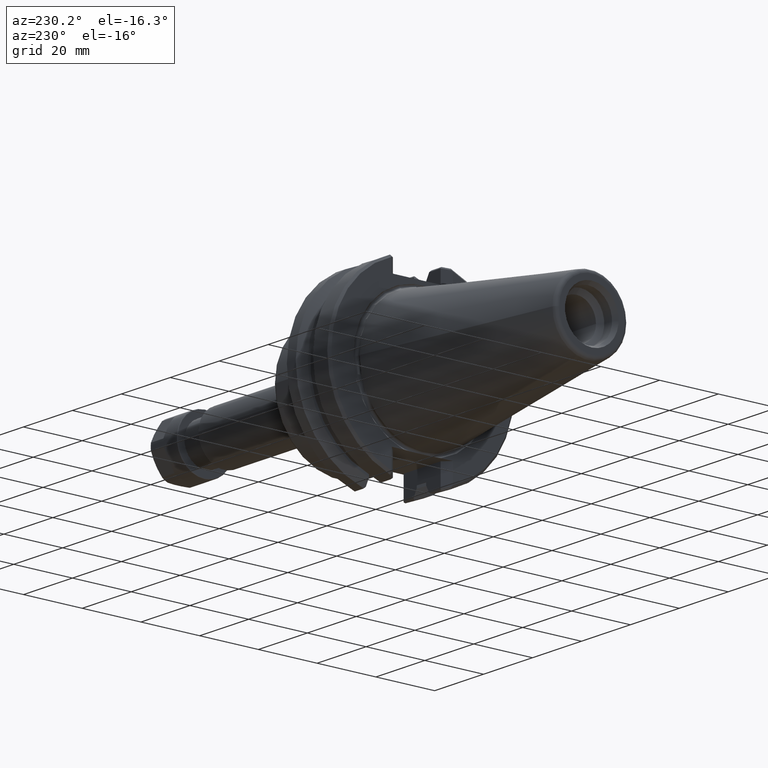
[diagram: clean part render]
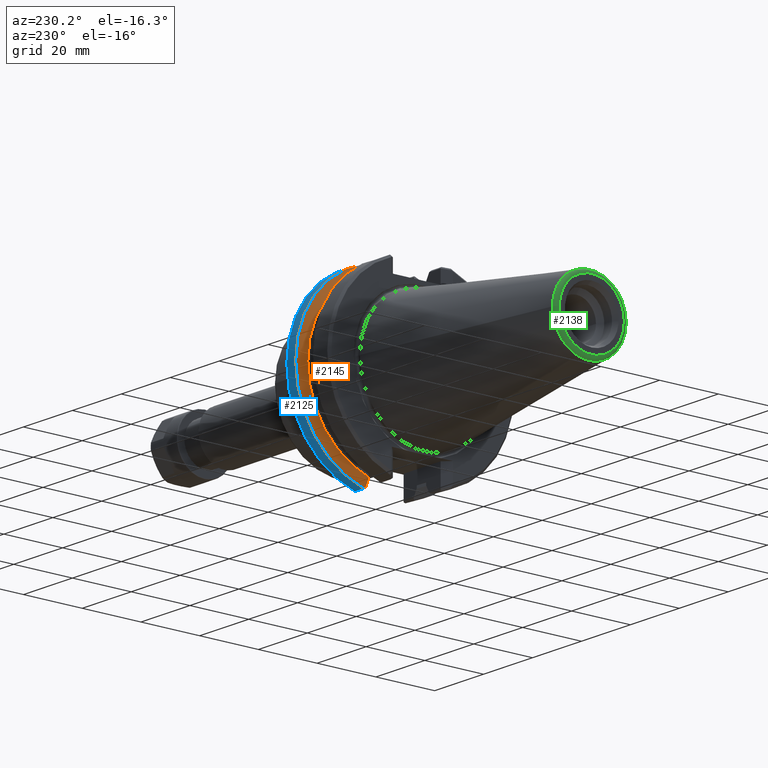
[diagram: same view with three faces highlighted in distinct colors, each labeled with its STEP entity id]
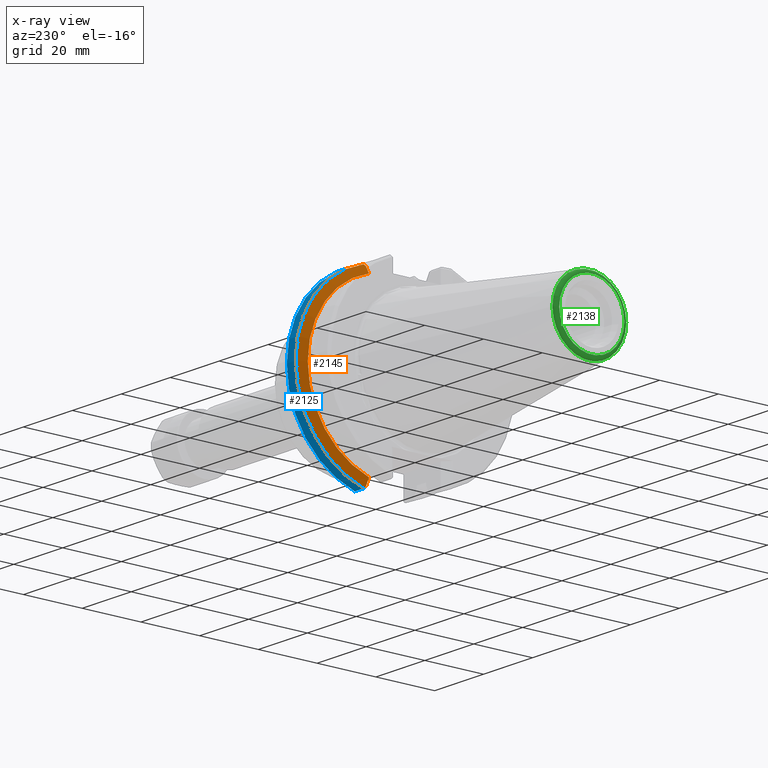
[diagram: x-ray of the same camera — body ghosted, the three highlighted faces saturated]
A machine part, auxiliary view with three faces highlighted in distinct colors.
The next image is the same camera in x-ray (body ghosted, the three faces saturated) — at least one of them is partly hidden behind the body in this view.
Their STEP definitions:

[orange] entity #2145 — the highlighted conical surface has half-angle 60 deg.
#44=(
BOUNDED_CURVE()
B_SPLINE_CURVE(2,(#4015,#4016,#4017),.UNSPECIFIED.,.F.,.F.)
B_SPLINE_CURVE_WITH_KNOTS((3,3),(0.070089065331503,0.330892155380645),
 .UNSPECIFIED.)
CURVE()
GEOMETRIC_REPRESENTATION_ITEM()
RATIONAL_B_SPLINE_CURVE((1.00037936412933,1.00089549356831,1.))
REPRESENTATION_ITEM('')
);
#62=(
BOUNDED_CURVE()
B_SPLINE_CURVE(2,(#4147,#4148,#4149),.UNSPECIFIED.,.F.,.F.)
B_SPLINE_CURVE_WITH_KNOTS((3,3),(0.28600217724328,0.361909205211998),
 .UNSPECIFIED.)
CURVE()
GEOMETRIC_REPRESENTATION_ITEM()
RATIONAL_B_SPLINE_CURVE((1.00047362249825,1.00029966265216,1.))
REPRESENTATION_ITEM('')
);
#63=(
BOUNDED_CURVE()
B_SPLINE_CURVE(2,(#4161,#4162,#4163),.UNSPECIFIED.,.F.,.F.)
B_SPLINE_CURVE_WITH_KNOTS((3,3),(0.,0.260803090047781),.UNSPECIFIED.)
CURVE()
GEOMETRIC_REPRESENTATION_ITEM()
RATIONAL_B_SPLINE_CURVE((1.,1.00089549356625,1.00037936412846))
REPRESENTATION_ITEM('')
);
#64=(
BOUNDED_CURVE()
B_SPLINE_CURVE(2,(#4172,#4173,#4174),.UNSPECIFIED.,.F.,.F.)
B_SPLINE_CURVE_WITH_KNOTS((3,3),(0.,0.0759070279682398),.UNSPECIFIED.)
CURVE()
GEOMETRIC_REPRESENTATION_ITEM()
RATIONAL_B_SPLINE_CURVE((1.,1.0002996626519,1.00047362249785))
REPRESENTATION_ITEM('')
);
#109=CONICAL_SURFACE('',#2324,1.2859099179857,59.9999999999907);
#562=FACE_OUTER_BOUND('',#725,.T.);
#725=EDGE_LOOP('',(#1726,#1727,#1728,#1729,#1730,#1731));
#849=CIRCLE('',#2293,1.25);
#861=CIRCLE('',#2325,1.14031983597144);
#1002=VERTEX_POINT('',#4012);
#1003=VERTEX_POINT('',#4014);
#1035=VERTEX_POINT('',#4146);
#1036=VERTEX_POINT('',#4152);
#1038=VERTEX_POINT('',#4158);
#1039=VERTEX_POINT('',#4160);
#1225=EDGE_CURVE('',#1003,#1002,#44,.T.);
#1274=EDGE_CURVE('',#1003,#1035,#62,.T.);
#1276=EDGE_CURVE('',#1035,#1036,#849,.T.);
#1280=EDGE_CURVE('',#1039,#1038,#63,.T.);
#1285=EDGE_CURVE('',#1036,#1038,#64,.T.);
#1302=EDGE_CURVE('',#1039,#1002,#861,.T.);
#1726=ORIENTED_EDGE('',*,*,#1274,.F.);
#1727=ORIENTED_EDGE('',*,*,#1225,.T.);
#1728=ORIENTED_EDGE('',*,*,#1302,.F.);
#1729=ORIENTED_EDGE('',*,*,#1280,.T.);
#1730=ORIENTED_EDGE('',*,*,#1285,.F.);
#1731=ORIENTED_EDGE('',*,*,#1276,.F.);
#2145=ADVANCED_FACE('',(#562),#109,.T.);
#2293=AXIS2_PLACEMENT_3D('',#4153,#2668,#2669);
#2324=AXIS2_PLACEMENT_3D('',#4247,#2738,#2739);
#2325=AXIS2_PLACEMENT_3D('',#4248,#2740,#2741);
#2668=DIRECTION('center_axis',(1.,0.,0.));
#2669=DIRECTION('ref_axis',(-1.62451355720802E-13,1.,0.));
#2738=DIRECTION('center_axis',(1.,1.62451355720802E-13,0.));
#2739=DIRECTION('ref_axis',(-1.62482077846417E-13,1.,0.));
#2740=DIRECTION('center_axis',(-1.,-1.62451355720802E-13,0.));
#2741=DIRECTION('ref_axis',(-1.62482077846417E-13,1.,0.));
#4012=CARTESIAN_POINT('',(0.513849999999924,0.320000000000302,-1.09449957894461));
#4014=CARTESIAN_POINT('',(0.563230740453672,0.32000000000031,-1.18334597694528));
#4015=CARTESIAN_POINT('Ctrl Pts',(0.563230740453672,0.32000000000031,-1.18334597694528));
#4016=CARTESIAN_POINT('Ctrl Pts',(0.537577332826975,0.320000000000306,-1.13731701223152));
#4017=CARTESIAN_POINT('Ctrl Pts',(0.51384999999979,0.320000000000302,-1.09449957894437));
#4146=CARTESIAN_POINT('',(0.577173872226652,0.339628138321779,-1.20297661143519));
#4147=CARTESIAN_POINT('Ctrl Pts',(0.563230740453672,0.32000000000031,-1.18334597694528));
#4148=CARTESIAN_POINT('Ctrl Pts',(0.570112454178538,0.329718339663518,-1.19306555251849));
#4149=CARTESIAN_POINT('Ctrl Pts',(0.577173872227151,0.339628138322648,-1.20297661143603));
#4152=CARTESIAN_POINT('',(0.577173872226652,0.339628138321787,1.20297661143518));
#4153=CARTESIAN_POINT('Origin',(0.577173872226652,0.,0.));
#4158=CARTESIAN_POINT('',(0.563230740453661,0.320000000000281,1.18334597694527));
#4160=CARTESIAN_POINT('',(0.513849999999924,0.320000000000281,1.09449957894462));
#4161=CARTESIAN_POINT('Ctrl Pts',(0.51384999999979,0.320000000000281,1.09449957894438));
#4162=CARTESIAN_POINT('Ctrl Pts',(0.537577332827406,0.320000000000281,1.13731701223231));
#4163=CARTESIAN_POINT('Ctrl Pts',(0.563230740453661,0.320000000000281,1.18334597694527));
#4172=CARTESIAN_POINT('Ctrl Pts',(0.577173872227003,0.339628138322426,1.20297661143582));
#4173=CARTESIAN_POINT('Ctrl Pts',(0.570112454178459,0.329718339663392,1.19306555251838));
#4174=CARTESIAN_POINT('Ctrl Pts',(0.563230740453661,0.320000000000281,1.18334597694527));
#4247=CARTESIAN_POINT('Origin',(0.59790647304228,3.15424726389789E-13,0.));
#4248=CARTESIAN_POINT('Origin',(0.513849999999975,3.01769638386957E-13,
0.));

[blue] entity #2125 — the highlighted cylindrical surface (partial cylindrical patch) has radius 31.75 mm, axis along (1, 0, 0).
#134=CYLINDRICAL_SURFACE('',#2292,1.25);
#204=LINE('',#4150,#318);
#205=LINE('',#4154,#319);
#318=VECTOR('',#2665,0.142826127773348);
#319=VECTOR('',#2670,0.142826127773348);
#542=FACE_OUTER_BOUND('',#694,.T.);
#694=EDGE_LOOP('',(#1649,#1650,#1651,#1652));
#848=CIRCLE('',#2290,1.25);
#849=CIRCLE('',#2293,1.25);
#1032=VERTEX_POINT('',#4132);
#1033=VERTEX_POINT('',#4136);
#1035=VERTEX_POINT('',#4146);
#1036=VERTEX_POINT('',#4152);
#1271=EDGE_CURVE('',#1032,#1033,#848,.T.);
#1275=EDGE_CURVE('',#1035,#1032,#204,.T.);
#1276=EDGE_CURVE('',#1035,#1036,#849,.T.);
#1277=EDGE_CURVE('',#1033,#1036,#205,.T.);
#1649=ORIENTED_EDGE('',*,*,#1275,.F.);
#1650=ORIENTED_EDGE('',*,*,#1276,.T.);
#1651=ORIENTED_EDGE('',*,*,#1277,.F.);
#1652=ORIENTED_EDGE('',*,*,#1271,.F.);
#2125=ADVANCED_FACE('',(#542),#134,.T.);
#2290=AXIS2_PLACEMENT_3D('',#4137,#2661,#2662);
#2292=AXIS2_PLACEMENT_3D('',#4151,#2666,#2667);
#2293=AXIS2_PLACEMENT_3D('',#4153,#2668,#2669);
#2661=DIRECTION('center_axis',(1.,0.,0.));
#2662=DIRECTION('ref_axis',(-1.62451355720802E-13,1.,0.));
#2665=DIRECTION('',(1.,0.,0.));
#2666=DIRECTION('center_axis',(1.,0.,0.));
#2667=DIRECTION('ref_axis',(-1.62451355720802E-13,1.,0.));
#2668=DIRECTION('center_axis',(1.,0.,0.));
#2669=DIRECTION('ref_axis',(-1.62451355720802E-13,1.,0.));
#2670=DIRECTION('',(-1.,0.,0.));
#4132=CARTESIAN_POINT('',(0.72,0.339628138321779,-1.20297661143519));
#4136=CARTESIAN_POINT('',(0.72,0.339628138321787,1.20297661143518));
#4137=CARTESIAN_POINT('Origin',(0.72,0.,0.));
#4146=CARTESIAN_POINT('',(0.577173872226652,0.339628138321779,-1.20297661143519));
#4150=CARTESIAN_POINT('',(0.3949,0.339628138321779,-1.20297661143519));
#4151=CARTESIAN_POINT('Origin',(0.3949,0.,0.));
#4152=CARTESIAN_POINT('',(0.577173872226652,0.339628138321787,1.20297661143518));
#4153=CARTESIAN_POINT('Origin',(0.577173872226652,0.,0.));
#4154=CARTESIAN_POINT('',(0.3949,0.339628138321787,1.20297661143518));

[green] entity #2138 — the highlighted toroidal blend (fillet) surface has major radius 11.0841 mm and minor (blend) radius 1.3716 mm.
#462=FACE_BOUND('',#714,.T.);
#555=FACE_OUTER_BOUND('',#713,.T.);
#713=EDGE_LOOP('',(#1701));
#714=EDGE_LOOP('',(#1702));
#857=CIRCLE('',#2314,0.43638354403444);
#858=CIRCLE('',#2315,0.48981834472846);
#1050=VERTEX_POINT('',#4233);
#1051=VERTEX_POINT('',#4235);
#1298=EDGE_CURVE('',#1050,#1050,#857,.T.);
#1299=EDGE_CURVE('',#1051,#1051,#858,.T.);
#1701=ORIENTED_EDGE('',*,*,#1298,.T.);
#1702=ORIENTED_EDGE('',*,*,#1299,.T.);
#1994=TOROIDAL_SURFACE('',#2313,0.43638354403444,0.054);
#2138=ADVANCED_FACE('',(#555,#462),#1994,.T.);
#2313=AXIS2_PLACEMENT_3D('',#4232,#2716,#2717);
#2314=AXIS2_PLACEMENT_3D('',#4234,#2718,#2719);
#2315=AXIS2_PLACEMENT_3D('',#4236,#2720,#2721);
#2716=DIRECTION('center_axis',(1.,0.,0.));
#2717=DIRECTION('ref_axis',(0.,0.,-1.));
#2718=DIRECTION('center_axis',(1.,0.,0.));
#2719=DIRECTION('ref_axis',(0.,-1.,1.22464679914735E-16));
#2720=DIRECTION('center_axis',(-1.,-3.56945127670622E-15,7.13890255341328E-16));
#2721=DIRECTION('ref_axis',(3.56945127670622E-15,-1.,2.83346419976399E-30));
#4232=CARTESIAN_POINT('Origin',(-2.6335,0.,0.));
#4233=CARTESIAN_POINT('',(-2.6875,0.43638354403444,0.));
#4234=CARTESIAN_POINT('Origin',(-2.6875,0.,0.));
#4235=CARTESIAN_POINT('',(-2.64129243702512,0.489818344728471,-1.19970893607074E-16));
#4236=CARTESIAN_POINT('Origin',(-2.64129243702511,1.13644876536433E-14,
-5.99854468035363E-17));